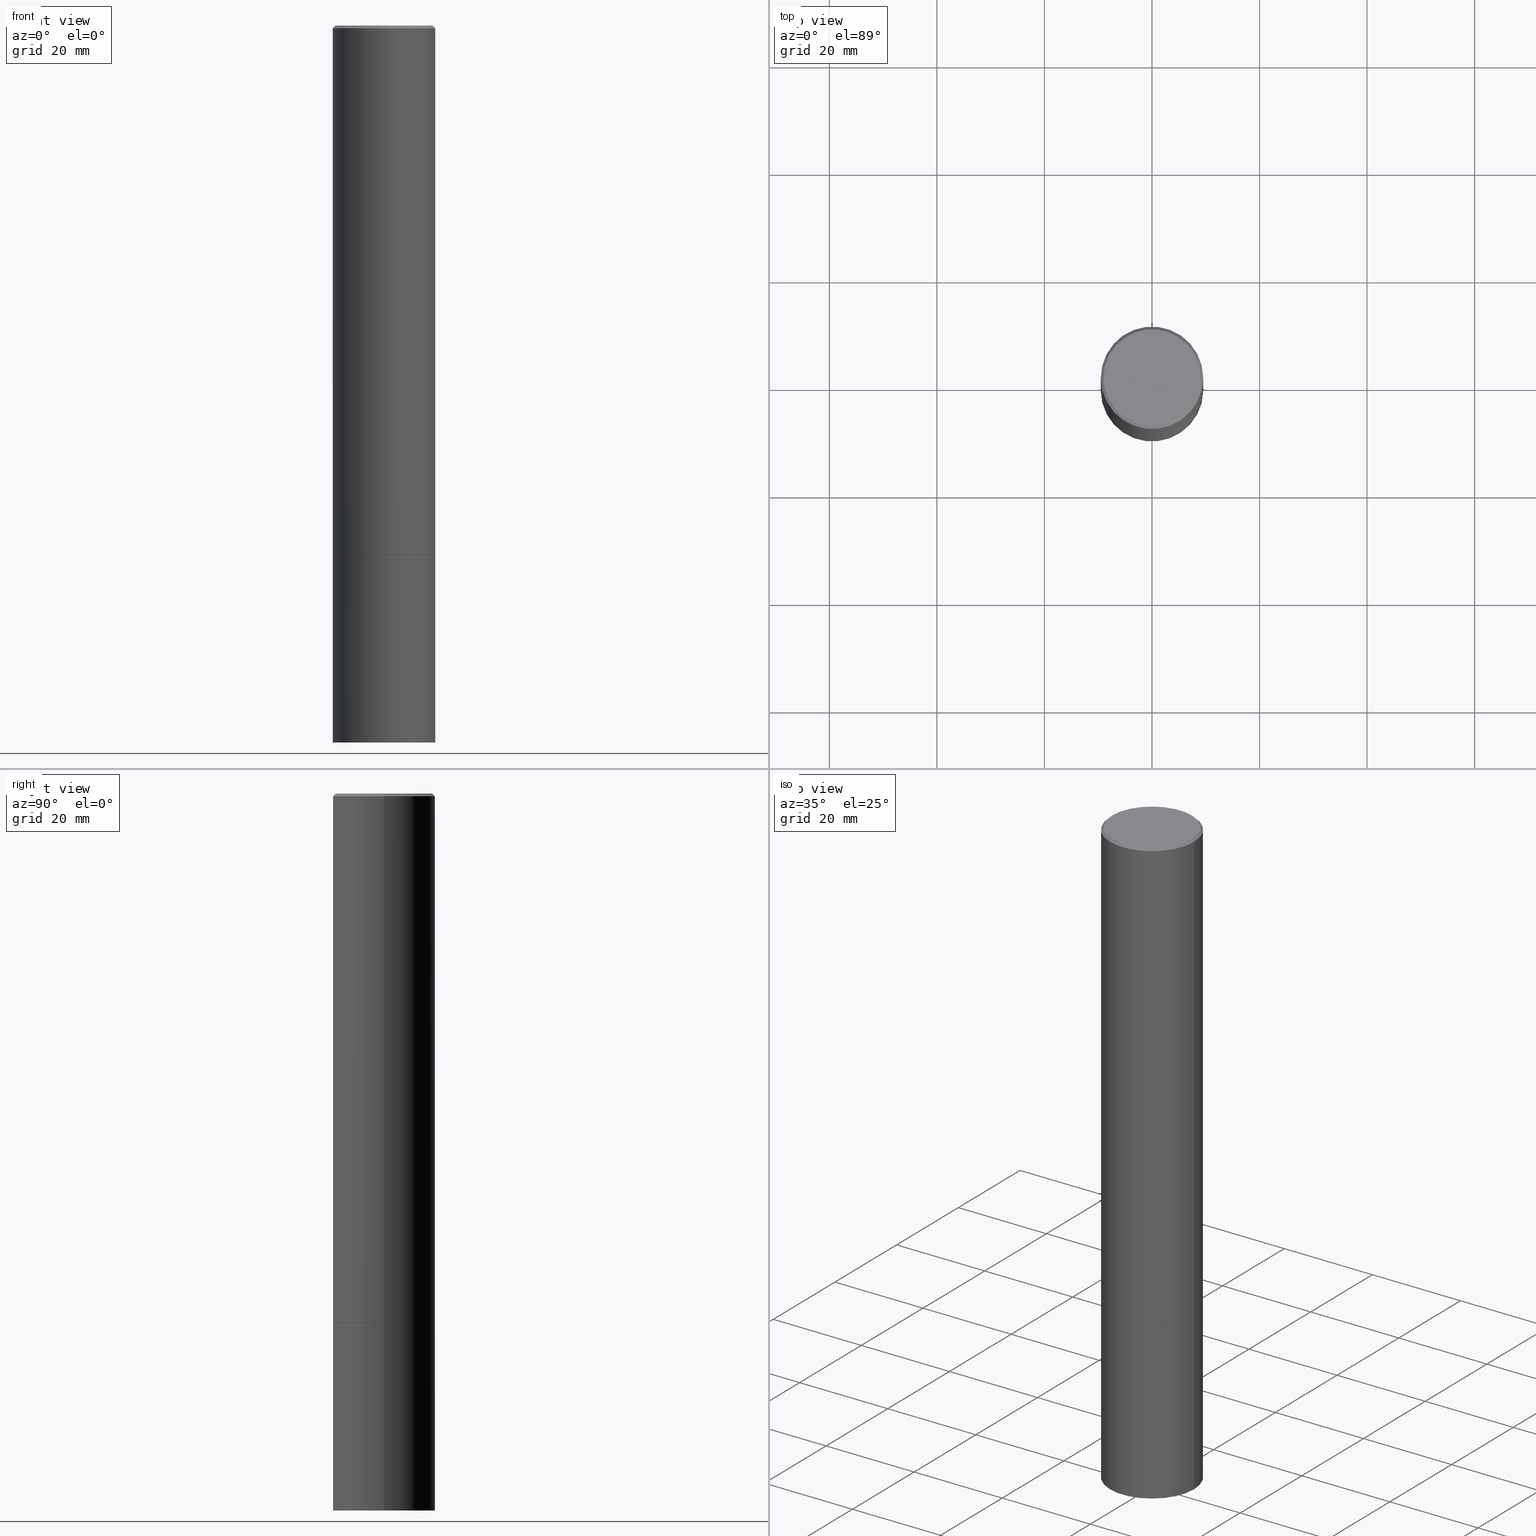
[diagram: canonical four-view strip — front | top / right | iso, engineering-drawing reading convention]
A machine part, canonical four-view strip (front | top / right | iso — engineering-drawing reading convention). The complete STEP part file that produces these views, byte-faithful:
ISO-10303-21;
HEADER;
FILE_DESCRIPTION (( 'STEP AP203' ),
    '1' );
FILE_NAME ('32287.STEP',
    '2024-02-27T15:03:30',
    ( '' ),
    ( '' ),
    'SwSTEP 2.0',
    'SolidWorks 2023',
    '' );
FILE_SCHEMA (( 'CONFIG_CONTROL_DESIGN' ));
ENDSEC;

DATA;
#1 = ORIENTED_EDGE ( 'NONE', *, *, #98, .F. ) ;
#2 = MANIFOLD_SOLID_BREP ( 'Body-Move/Copy2[2]', #49 ) ;
#3 = DATE_AND_TIME ( #285, #34 ) ;
#4 = ORIENTED_EDGE ( 'NONE', *, *, #312, .T. ) ;
#5 = CALENDAR_DATE ( 2024, 27, 2 ) ;
#6 = AXIS2_PLACEMENT_3D ( 'NONE', #17, #97, #272 ) ;
#7 = AXIS2_PLACEMENT_3D ( 'NONE', #300, #294, #157 ) ;
#8 = ORIENTED_EDGE ( 'NONE', *, *, #308, .T. ) ;
#9 = VERTEX_POINT ( 'NONE', #28 ) ;
#10 = CARTESIAN_POINT ( 'NONE',  ( 0.000000000000000000, 0.000000000000000000, 0.000000000000000000 ) ) ;
#11 = APPROVAL_STATUS ( 'not_yet_approved' ) ;
#12 = MANIFOLD_SOLID_BREP ( 'Body-Move/Copy2[1]', #160 ) ;
#13 = DIRECTION ( 'NONE',  ( -0.7071067811865469066, 2.468850131082250355E-15, -0.7071067811865481278 ) ) ;
#14 = LINE ( 'NONE', #93, #191 ) ;
#15 = PERSON_AND_ORGANIZATION_ROLE ( 'classification_officer' ) ;
#16 = DIRECTION ( 'NONE',  ( 1.000000000000000000, -6.982962677686265922E-15, 4.876176775795935793E-29 ) ) ;
#17 = CARTESIAN_POINT ( 'NONE',  ( 0.000000000000000000, 0.000000000000000000, 0.000000000000000000 ) ) ;
#18 = CC_DESIGN_APPROVAL ( #335, ( #357 ) ) ;
#19 = DIRECTION ( 'NONE',  ( -2.445468806185136597E-29, 3.491481338843145583E-15, 1.000000000000000000 ) ) ;
#20 = LINE ( 'NONE', #360, #254 ) ;
#21 = CARTESIAN_POINT ( 'NONE',  ( -0.3739999999999999991, -1.086676190192619278E-14, -3.875000000000000444 ) ) ;
#22 = FACE_OUTER_BOUND ( 'NONE', #144, .T. ) ;
#23 = CIRCLE ( 'NONE', #138, 0.3749999999999996669 ) ;
#24 = AXIS2_PLACEMENT_3D ( 'NONE', #26, #130, #77 ) ;
#25 = EDGE_CURVE ( 'NONE', #320, #342, #255, .T. ) ;
#26 = CARTESIAN_POINT ( 'NONE',  ( -2.087702828670439639E-46, 2.980686340760894400E-32, 8.537024980200822558E-18 ) ) ;
#27 = EDGE_CURVE ( 'NONE', #196, #261, #253, .T. ) ;
#28 = CARTESIAN_POINT ( 'NONE',  ( 0.3750000000000000555, -1.614810119214954068E-14, -3.875000000000000000 ) ) ;
#29 = AXIS2_PLACEMENT_3D ( 'NONE', #91, #207, #240 ) ;
#30 = ORIENTED_EDGE ( 'NONE', *, *, #183, .T. ) ;
#31 = EDGE_LOOP ( 'NONE', ( #109, #338, #197, #170 ) ) ;
#32 = ORIENTED_EDGE ( 'NONE', *, *, #203, .F. ) ;
#33 = VECTOR ( 'NONE', #151, 39.37007874015748143 ) ;
#34 = LOCAL_TIME ( 10, 3, 30.00000000000000000, #103 ) ;
#35 = EDGE_CURVE ( 'NONE', #345, #9, #361, .T. ) ;
#36 = CC_DESIGN_APPROVAL ( #246, ( #59 ) ) ;
#37 = ADVANCED_FACE ( 'NONE', ( #350 ), #211, .F. ) ;
#38 = ORIENTED_EDGE ( 'NONE', *, *, #299, .F. ) ;
#39 = DIRECTION ( 'NONE',  ( -2.445468806185136877E-29, 3.491481338843145188E-15, 1.000000000000000000 ) ) ;
#40 = DATE_TIME_ROLE ( 'creation_date' ) ;
#41 = CARTESIAN_POINT ( 'NONE',  ( 9.476191623967405434E-29, -1.352949018801719066E-14, -3.875000000000000444 ) ) ;
#42 = APPROVAL_DATE_TIME ( #208, #335 ) ;
#43 = APPROVAL_PERSON_ORGANIZATION ( #319, #128, #341 ) ;
#44 = DIRECTION ( 'NONE',  ( 1.000000000000000000, -6.982962677686265922E-15, 4.876176775795935793E-29 ) ) ;
#45 = COORDINATED_UNIVERSAL_TIME_OFFSET ( 5, 0, .BEHIND. ) ;
#46 = CARTESIAN_POINT ( 'NONE',  ( -0.3549999999999996492, 2.513866563967053097E-15, 8.537024980183364388E-18 ) ) ;
#47 = DIRECTION ( 'NONE',  ( 1.000000000000000000, -6.982962677686265133E-15, 0.000000000000000000 ) ) ;
#48 = APPROVAL_STATUS ( 'not_yet_approved' ) ;
#49 = CLOSED_SHELL ( 'NONE', ( #366, #167, #343, #353, #171, #104, #37, #222 ) ) ;
#50 = FACE_OUTER_BOUND ( 'NONE', #339, .T. ) ;
#51 = AXIS2_PLACEMENT_3D ( 'NONE', #251, #52, #332 ) ;
#52 = DIRECTION ( 'NONE',  ( 2.438088387897960049E-29, -3.491481338843145188E-15, -1.000000000000000000 ) ) ;
#53 = CARTESIAN_POINT ( 'NONE',  ( 0.000000000000000000, 0.000000000000000000, 0.000000000000000000 ) ) ;
#54 = EDGE_CURVE ( 'NONE', #199, #320, #117, .T. ) ;
#55 = CARTESIAN_POINT ( 'NONE',  ( 9.473746155161219831E-29, -1.352599870667834608E-14, -3.874000000000000110 ) ) ;
#56 = VECTOR ( 'NONE', #39, 39.37007874015748143 ) ;
#57 = EDGE_LOOP ( 'NONE', ( #283, #263, #115, #173 ) ) ;
#58 = ORIENTED_EDGE ( 'NONE', *, *, #231, .F. ) ;
#59 = PRODUCT_DEFINITION ( 'UNKNOWN', '', #357, #142 ) ;
#60 = APPLICATION_CONTEXT ( 'configuration controlled 3d designs of mechanical parts and assemblies' ) ;
#61 = AXIS2_PLACEMENT_3D ( 'NONE', #346, #125, #47 ) ;
#62 = EDGE_LOOP ( 'NONE', ( #284, #135 ) ) ;
#63 = VERTEX_POINT ( 'NONE', #73 ) ;
#64 = EDGE_LOOP ( 'NONE', ( #228, #317, #141, #309 ) ) ;
#65 = CYLINDRICAL_SURFACE ( 'NONE', #260, 0.3749999999999998335 ) ;
#66 = UNCERTAINTY_MEASURE_WITH_UNIT (LENGTH_MEASURE( 1.000000000000000082E-05 ), #150, 'distance_accuracy_value', 'NONE');
#67 = PERSON_AND_ORGANIZATION ( #306, #194 ) ;
#68 = EDGE_CURVE ( 'NONE', #84, #224, #14, .T. ) ;
#69 = CARTESIAN_POINT ( 'NONE',  ( -0.3750000000000000555, -1.326534834937147625E-14, -5.250000000000000000 ) ) ;
#70 = CARTESIAN_POINT ( 'NONE',  ( 1.283871123247196713E-28, -1.833027702892651322E-14, -5.250000000000000000 ) ) ;
#71 = APPLICATION_PROTOCOL_DEFINITION ( 'international standard', 'config_control_design', 1994, #112 ) ;
#72 = AXIS2_PLACEMENT_3D ( 'NONE', #53, #189, #280 ) ;
#73 = CARTESIAN_POINT ( 'NONE',  ( 0.3749999999999996669, -2.642516375941185662E-15, -0.02000000000000008715 ) ) ;
#74 =( NAMED_UNIT ( * ) SI_UNIT ( $, .STERADIAN. ) SOLID_ANGLE_UNIT ( ) );
#75 = FACE_OUTER_BOUND ( 'NONE', #64, .T. ) ;
#76 = CYLINDRICAL_SURFACE ( 'NONE', #72, 0.3750000000000000555 ) ;
#77 = DIRECTION ( 'NONE',  ( 1.000000000000000000, -6.982962677686265922E-15, 4.876231632511992667E-29 ) ) ;
#78 = CIRCLE ( 'NONE', #106, 0.3739999999999999991 ) ;
#79 = FACE_OUTER_BOUND ( 'NONE', #57, .T. ) ;
#80 = LINE ( 'NONE', #127, #81 ) ;
#81 = VECTOR ( 'NONE', #276, 39.37007874015748143 ) ;
#82 = PRODUCT_DEFINITION_SHAPE ( 'NONE', 'NONE',  #59 ) ;
#83 = EDGE_LOOP ( 'NONE', ( #314, #139 ) ) ;
#84 = VERTEX_POINT ( 'NONE', #46 ) ;
#85 = ORIENTED_EDGE ( 'NONE', *, *, #364, .F. ) ;
#86 = EDGE_LOOP ( 'NONE', ( #114, #315 ) ) ;
#87 = VERTEX_POINT ( 'NONE', #302 ) ;
#88 = CARTESIAN_POINT ( 'NONE',  ( 0.3739999999999999991, -1.614111822947185466E-14, -3.875000000000000444 ) ) ;
#89 = AXIS2_PLACEMENT_3D ( 'NONE', #158, #95, #214 ) ;
#90 = AXIS2_PLACEMENT_3D ( 'NONE', #101, #216, #132 ) ;
#91 = CARTESIAN_POINT ( 'NONE',  ( 9.476191623967405434E-29, -1.352949018801719066E-14, -3.875000000000000444 ) ) ;
#92 = CC_DESIGN_PERSON_AND_ORGANIZATION_ASSIGNMENT ( #153, #267, ( #357 ) ) ;
#93 = CARTESIAN_POINT ( 'NONE',  ( -0.3749999999999996669, 2.548781377355484352E-15, -0.02000000000000008715 ) ) ;
#94 = CARTESIAN_POINT ( 'NONE',  ( 9.476191623967405434E-29, -1.352949018801719066E-14, -3.875000000000000444 ) ) ;
#95 = DIRECTION ( 'NONE',  ( -2.445468806185136597E-29, 3.491481338843145583E-15, 1.000000000000000000 ) ) ;
#96 = CIRCLE ( 'NONE', #145, 0.3749999999999996669 ) ;
#97 = DIRECTION ( 'NONE',  ( -2.445468806185136597E-29, 3.491481338843145583E-15, 1.000000000000000000 ) ) ;
#98 = EDGE_CURVE ( 'NONE', #224, #63, #23, .T. ) ;
#99 = APPROVAL_DATE_TIME ( #146, #128 ) ;
#100 =( LENGTH_UNIT ( ) NAMED_UNIT ( * ) SI_UNIT ( $, .METRE. ) );
#101 = CARTESIAN_POINT ( 'NONE',  ( 4.890937612370294178E-31, -6.982962677686321191E-17, -0.02000000000000008715 ) ) ;
#102 = DIRECTION ( 'NONE',  ( -1.000000000000000000, 6.982962677686266711E-15, 0.000000000000000000 ) ) ;
#103 = COORDINATED_UNIVERSAL_TIME_OFFSET ( 5, 0, .BEHIND. ) ;
#104 = ADVANCED_FACE ( 'NONE', ( #122 ), #218, .T. ) ;
#105 = PLANE ( 'NONE',  #205 ) ;
#106 = AXIS2_PLACEMENT_3D ( 'NONE', #136, #277, #249 ) ;
#107 = CARTESIAN_POINT ( 'NONE',  ( 0.3749999999999996669, -2.642516375941185662E-15, -0.02000000000000008715 ) ) ;
#108 = CC_DESIGN_DATE_AND_TIME_ASSIGNMENT ( #292, #40, ( #59 ) ) ;
#109 = ORIENTED_EDGE ( 'NONE', *, *, #54, .T. ) ;
#110 = ORIENTED_EDGE ( 'NONE', *, *, #131, .T. ) ;
#111 = EDGE_LOOP ( 'NONE', ( #148, #365, #110, #58 ) ) ;
#112 = APPLICATION_CONTEXT ( 'configuration controlled 3d designs of mechanical parts and assemblies' ) ;
#113 = AXIS2_PLACEMENT_3D ( 'NONE', #184, #204, #209 ) ;
#114 = ORIENTED_EDGE ( 'NONE', *, *, #168, .T. ) ;
#115 = ORIENTED_EDGE ( 'NONE', *, *, #180, .T. ) ;
#116 = CYLINDRICAL_SURFACE ( 'NONE', #6, 0.3749999999999998335 ) ;
#117 = CIRCLE ( 'NONE', #192, 0.3739999999999999991 ) ;
#118 = CONICAL_SURFACE ( 'NONE', #90, 0.3749999999999996669, 0.7853981633974473908 ) ;
#119 = APPLICATION_PROTOCOL_DEFINITION ( 'international standard', 'config_control_design', 1994, #60 ) ;
#120 = CARTESIAN_POINT ( 'NONE',  ( 1.283871123247196713E-28, -1.833027702892651322E-14, -5.250000000000000000 ) ) ;
#121 = PERSON_AND_ORGANIZATION_ROLE ( 'creator' ) ;
#122 = FACE_OUTER_BOUND ( 'NONE', #111, .T. ) ;
#123 = APPROVAL_ROLE ( '' ) ;
#124 = EDGE_CURVE ( 'NONE', #230, #342, #227, .T. ) ;
#125 = DIRECTION ( 'NONE',  ( -2.445468806185136597E-29, 3.491481338843145583E-15, 1.000000000000000000 ) ) ;
#126 = APPROVAL_PERSON_ORGANIZATION ( #303, #246, #123 ) ;
#127 = CARTESIAN_POINT ( 'NONE',  ( -0.3749999999999998335, 2.664535259100374514E-15, -1.844600658845588757E-29 ) ) ;
#128 = APPROVAL ( #226, 'UNSPECIFIED' ) ;
#129 = COORDINATED_UNIVERSAL_TIME_OFFSET ( 5, 0, .BEHIND. ) ;
#130 = DIRECTION ( 'NONE',  ( -2.445468806185136597E-29, 3.491481338843145583E-15, 1.000000000000000000 ) ) ;
#131 = EDGE_CURVE ( 'NONE', #199, #230, #270, .T. ) ;
#132 = DIRECTION ( 'NONE',  ( -1.000000000000000000, 6.982962677686266711E-15, 0.000000000000000000 ) ) ;
#133 = AXIS2_PLACEMENT_3D ( 'NONE', #120, #182, #326 ) ;
#134 = LINE ( 'NONE', #359, #147 ) ;
#135 = ORIENTED_EDGE ( 'NONE', *, *, #364, .T. ) ;
#136 = CARTESIAN_POINT ( 'NONE',  ( 9.476191623967405434E-29, -1.352949018801719066E-14, -3.875000000000000444 ) ) ;
#137 = ADVANCED_FACE ( 'NONE', ( #75 ), #352, .T. ) ;
#138 = AXIS2_PLACEMENT_3D ( 'NONE', #156, #233, #238 ) ;
#139 = ORIENTED_EDGE ( 'NONE', *, *, #301, .F. ) ;
#140 = AXIS2_PLACEMENT_3D ( 'NONE', #94, #274, #159 ) ;
#141 = ORIENTED_EDGE ( 'NONE', *, *, #168, .F. ) ;
#142 = DESIGN_CONTEXT ( 'detailed design', #112, 'design' ) ;
#143 = ORIENTED_EDGE ( 'NONE', *, *, #98, .T. ) ;
#144 = EDGE_LOOP ( 'NONE', ( #85, #8, #30, #256 ) ) ;
#145 = AXIS2_PLACEMENT_3D ( 'NONE', #293, #235, #348 ) ;
#146 = DATE_AND_TIME ( #5, #250 ) ;
#147 = VECTOR ( 'NONE', #188, 39.37007874015748143 ) ;
#148 = ORIENTED_EDGE ( 'NONE', *, *, #25, .F. ) ;
#149 = DIRECTION ( 'NONE',  ( -2.445468806185136597E-29, 3.491481338843145583E-15, 1.000000000000000000 ) ) ;
#150 =( CONVERSION_BASED_UNIT ( 'INCH', #210 ) LENGTH_UNIT ( ) NAMED_UNIT ( #193 ) );
#151 = DIRECTION ( 'NONE',  ( 0.7071067811864026886, -2.468850131080739687E-15, 0.7071067811866923458 ) ) ;
#152 = LOCAL_TIME ( 10, 3, 30.00000000000000000, #45 ) ;
#153 = PERSON_AND_ORGANIZATION ( #306, #194 ) ;
#154 = FACE_OUTER_BOUND ( 'NONE', #62, .T. ) ;
#155 = SECURITY_CLASSIFICATION_LEVEL ( 'unclassified' ) ;
#156 = CARTESIAN_POINT ( 'NONE',  ( 4.890937612370294178E-31, -6.982962677686321191E-17, -0.02000000000000008715 ) ) ;
#157 = DIRECTION ( 'NONE',  ( 1.000000000000000000, 0.000000000000000000, 0.000000000000000000 ) ) ;
#158 = CARTESIAN_POINT ( 'NONE',  ( 9.476191623967404313E-29, -1.352949018801718908E-14, -3.875000000000000000 ) ) ;
#159 = DIRECTION ( 'NONE',  ( 1.000000000000000000, -6.982962677686265133E-15, 0.000000000000000000 ) ) ;
#160 = CLOSED_SHELL ( 'NONE', ( #137, #327, #232, #271 ) ) ;
#161 = CARTESIAN_POINT ( 'NONE',  ( 0.3750000000000000555, -2.094888803305886324E-14, -5.250000000000000000 ) ) ;
#162 = PLANE ( 'NONE',  #51 ) ;
#163 = CC_DESIGN_PERSON_AND_ORGANIZATION_ASSIGNMENT ( #181, #297, ( #357 ) ) ;
#164 = CARTESIAN_POINT ( 'NONE',  ( 2.618611004132478601E-15, 0.3749999999999817368, -5.250000000000000888 ) ) ;
#165 = DIRECTION ( 'NONE',  ( 1.000000000000000000, -6.982962677686269077E-15, 0.000000000000000000 ) ) ;
#166 = LOCAL_TIME ( 10, 3, 30.00000000000000000, #129 ) ;
#167 = ADVANCED_FACE ( 'NONE', ( #354 ), #116, .T. ) ;
#168 = EDGE_CURVE ( 'NONE', #9, #345, #278, .T. ) ;
#169 = ORIENTED_EDGE ( 'NONE', *, *, #308, .F. ) ;
#170 = ORIENTED_EDGE ( 'NONE', *, *, #131, .F. ) ;
#171 = ADVANCED_FACE ( 'NONE', ( #324 ), #65, .T. ) ;
#172 = CARTESIAN_POINT ( 'NONE',  ( -0.3739999999999999991, -1.087206035627441518E-14, -3.875000000000000444 ) ) ;
#173 = ORIENTED_EDGE ( 'NONE', *, *, #35, .F. ) ;
#174 = ORIENTED_EDGE ( 'NONE', *, *, #312, .F. ) ;
#175 = CARTESIAN_POINT ( 'NONE',  ( 0.000000000000000000, 0.000000000000000000, 0.000000000000000000 ) ) ;
#176 = CALENDAR_DATE ( 2024, 27, 2 ) ;
#177 = CARTESIAN_POINT ( 'NONE',  ( 0.3739999999999999991, -1.614111822947185466E-14, -3.875000000000000444 ) ) ;
#178 = PERSON_AND_ORGANIZATION_ROLE ( 'design_owner' ) ;
#179 = DIRECTION ( 'NONE',  ( -2.445468806185136597E-29, 3.491481338843145583E-15, 1.000000000000000000 ) ) ;
#180 = EDGE_CURVE ( 'NONE', #261, #9, #325, .T. ) ;
#181 = PERSON_AND_ORGANIZATION ( #306, #194 ) ;
#182 = DIRECTION ( 'NONE',  ( -2.445468806185136597E-29, 3.491481338843145583E-15, 1.000000000000000000 ) ) ;
#183 = EDGE_CURVE ( 'NONE', #63, #224, #96, .T. ) ;
#184 = CARTESIAN_POINT ( 'NONE',  ( 9.476191623967404313E-29, -1.352949018801718908E-14, -3.875000000000000000 ) ) ;
#185 = PERSON_AND_ORGANIZATION ( #306, #194 ) ;
#186 = DIRECTION ( 'NONE',  ( -1.000000000000000000, 6.982962677686265922E-15, -4.876176775795935793E-29 ) ) ;
#187 = AXIS2_PLACEMENT_3D ( 'NONE', #264, #149, #322 ) ;
#188 = DIRECTION ( 'NONE',  ( -2.445468806185136877E-29, 3.491481338843145188E-15, 1.000000000000000000 ) ) ;
#189 = DIRECTION ( 'NONE',  ( -2.445468806185136597E-29, 3.491481338843145583E-15, 1.000000000000000000 ) ) ;
#190 = CARTESIAN_POINT ( 'NONE',  ( 0.3749999999999999445, -1.614460971081069609E-14, -3.874000000000000110 ) ) ;
#191 = VECTOR ( 'NONE', #13, 39.37007874015748143 ) ;
#192 = AXIS2_PLACEMENT_3D ( 'NONE', #41, #329, #268 ) ;
#193 = DIMENSIONAL_EXPONENTS ( 1.000000000000000000, 0.000000000000000000, 0.000000000000000000, 0.000000000000000000, 0.000000000000000000, 0.000000000000000000, 0.000000000000000000 ) ;
#194 = ORGANIZATION ( 'UNSPECIFIED', 'UNSPECIFIED', '' ) ;
#195 = CC_DESIGN_PERSON_AND_ORGANIZATION_ASSIGNMENT ( #185, #178, ( #344 ) ) ;
#196 = VERTEX_POINT ( 'NONE', #69 ) ;
#197 = ORIENTED_EDGE ( 'NONE', *, *, #124, .F. ) ;
#198 = AXIS2_PLACEMENT_3D ( 'NONE', #10, #243, #16 ) ;
#199 = VERTEX_POINT ( 'NONE', #177 ) ;
#200 = AXIS2_PLACEMENT_3D ( 'NONE', #55, #219, #165 ) ;
#201 = ORIENTED_EDGE ( 'NONE', *, *, #124, .T. ) ;
#202 = ORIENTED_EDGE ( 'NONE', *, *, #299, .T. ) ;
#203 = EDGE_CURVE ( 'NONE', #261, #196, #355, .T. ) ;
#204 = DIRECTION ( 'NONE',  ( -2.445468806185136597E-29, 3.491481338843145583E-15, 1.000000000000000000 ) ) ;
#205 = AXIS2_PLACEMENT_3D ( 'NONE', #362, #304, #186 ) ;
#206 = DATE_AND_TIME ( #247, #166 ) ;
#207 = DIRECTION ( 'NONE',  ( -2.438088387897960049E-29, 3.491481338843145188E-15, 1.000000000000000000 ) ) ;
#208 = DATE_AND_TIME ( #349, #152 ) ;
#209 = DIRECTION ( 'NONE',  ( 1.000000000000000000, -6.982962677686266711E-15, 0.000000000000000000 ) ) ;
#210 = LENGTH_MEASURE_WITH_UNIT ( LENGTH_MEASURE( 0.02539999999999999897 ), #100 );
#211 = PLANE ( 'NONE',  #29 ) ;
#212 = CC_DESIGN_PERSON_AND_ORGANIZATION_ASSIGNMENT ( #67, #121, ( #59 ) ) ;
#213 = SECURITY_CLASSIFICATION ( '', '', #155 ) ;
#214 = DIRECTION ( 'NONE',  ( 1.000000000000000000, -6.982962677686266711E-15, 0.000000000000000000 ) ) ;
#215 =( NAMED_UNIT ( * ) PLANE_ANGLE_UNIT ( ) SI_UNIT ( $, .RADIAN. ) );
#216 = DIRECTION ( 'NONE',  ( 2.445468806185136597E-29, -3.491481338843145583E-15, -1.000000000000000000 ) ) ;
#217 = DIRECTION ( 'NONE',  ( -1.000000000000000000, 6.982962677686265922E-15, -4.876176775795935793E-29 ) ) ;
#218 = CONICAL_SURFACE ( 'NONE', #61, 0.3739999999999999991, 0.7853981633972434429 ) ;
#219 = DIRECTION ( 'NONE',  ( -2.445468806185136597E-29, 3.491481338843145583E-15, 1.000000000000000000 ) ) ;
#220 = DIRECTION ( 'NONE',  ( 0.7071067811865469066, -7.319954787623254468E-15, -0.7071067811865481278 ) ) ;
#221 = ORIENTED_EDGE ( 'NONE', *, *, #27, .F. ) ;
#222 = ADVANCED_FACE ( 'NONE', ( #154 ), #105, .F. ) ;
#223 = CC_DESIGN_SECURITY_CLASSIFICATION ( #213, ( #357 ) ) ;
#224 = VERTEX_POINT ( 'NONE', #311 ) ;
#225 = EDGE_LOOP ( 'NONE', ( #32, #221 ) ) ;
#226 = APPROVAL_STATUS ( 'not_yet_approved' ) ;
#227 = CIRCLE ( 'NONE', #187, 0.3749999999999999445 ) ;
#228 = ORIENTED_EDGE ( 'NONE', *, *, #203, .T. ) ;
#229 = CIRCLE ( 'NONE', #262, 0.3549999999999996492 ) ;
#230 = VERTEX_POINT ( 'NONE', #190 ) ;
#231 = EDGE_CURVE ( 'NONE', #342, #230, #347, .T. ) ;
#232 = ADVANCED_FACE ( 'NONE', ( #307 ), #162, .F. ) ;
#233 = DIRECTION ( 'NONE',  ( -2.445468806185136597E-29, 3.491481338843145583E-15, 1.000000000000000000 ) ) ;
#234 = CC_DESIGN_DATE_AND_TIME_ASSIGNMENT ( #3, #257, ( #213 ) ) ;
#235 = DIRECTION ( 'NONE',  ( -2.445468806185136597E-29, 3.491481338843145583E-15, 1.000000000000000000 ) ) ;
#236 = VECTOR ( 'NONE', #298, 39.37007874015748143 ) ;
#237 = MECHANICAL_CONTEXT ( 'NONE', #60, 'mechanical' ) ;
#238 = DIRECTION ( 'NONE',  ( 1.000000000000000000, -6.982962677686266711E-15, 0.000000000000000000 ) ) ;
#239 = COORDINATED_UNIVERSAL_TIME_OFFSET ( 5, 0, .BEHIND. ) ;
#240 = DIRECTION ( 'NONE',  ( 1.000000000000000000, -6.982962677686265922E-15, 4.876176775795935793E-29 ) ) ;
#241 = SHAPE_DEFINITION_REPRESENTATION ( #82, #288 ) ;
#242 = CARTESIAN_POINT ( 'NONE',  ( -2.087702828670439639E-46, 2.980686340760894400E-32, 8.537024980200822558E-18 ) ) ;
#243 = DIRECTION ( 'NONE',  ( -2.445468806185136597E-29, 3.491481338843145583E-15, 1.000000000000000000 ) ) ;
#244 = AXIS2_PLACEMENT_3D ( 'NONE', #70, #179, #295 ) ;
#245 = DIRECTION ( 'NONE',  ( 2.438088387897960049E-29, -3.491481338843145188E-15, -1.000000000000000000 ) ) ;
#246 = APPROVAL ( #48, 'UNSPECIFIED' ) ;
#247 = CALENDAR_DATE ( 2024, 27, 2 ) ;
#248 = DIRECTION ( 'NONE',  ( 2.445468806185136597E-29, -3.491481338843145583E-15, -1.000000000000000000 ) ) ;
#249 = DIRECTION ( 'NONE',  ( 1.000000000000000000, -6.982962677686265133E-15, 0.000000000000000000 ) ) ;
#250 = LOCAL_TIME ( 10, 3, 30.00000000000000000, #259 ) ;
#251 = CARTESIAN_POINT ( 'NONE',  ( 2.618611004132444680E-15, 0.3749999999999865108, -3.875000000000001332 ) ) ;
#252 = LINE ( 'NONE', #107, #279 ) ;
#253 = CIRCLE ( 'NONE', #133, 0.3750000000000000555 ) ;
#254 = VECTOR ( 'NONE', #336, 39.37007874015748143 ) ;
#255 = LINE ( 'NONE', #172, #236 ) ;
#256 = ORIENTED_EDGE ( 'NONE', *, *, #68, .F. ) ;
#257 = DATE_TIME_ROLE ( 'classification_date' ) ;
#258 = EDGE_LOOP ( 'NONE', ( #201, #4, #340, #38 ) ) ;
#259 = COORDINATED_UNIVERSAL_TIME_OFFSET ( 5, 0, .BEHIND. ) ;
#260 = AXIS2_PLACEMENT_3D ( 'NONE', #175, #266, #44 ) ;
#261 = VERTEX_POINT ( 'NONE', #161 ) ;
#262 = AXIS2_PLACEMENT_3D ( 'NONE', #242, #19, #328 ) ;
#263 = ORIENTED_EDGE ( 'NONE', *, *, #27, .T. ) ;
#264 = CARTESIAN_POINT ( 'NONE',  ( 9.473746155161219831E-29, -1.352599870667834608E-14, -3.874000000000000110 ) ) ;
#265 = PERSON_AND_ORGANIZATION ( #306, #194 ) ;
#266 = DIRECTION ( 'NONE',  ( -2.445468806185136597E-29, 3.491481338843145583E-15, 1.000000000000000000 ) ) ;
#267 = PERSON_AND_ORGANIZATION_ROLE ( 'creator' ) ;
#268 = DIRECTION ( 'NONE',  ( 1.000000000000000000, -6.982962677686265133E-15, 0.000000000000000000 ) ) ;
#269 = PERSON_AND_ORGANIZATION ( #306, #194 ) ;
#270 = LINE ( 'NONE', #88, #33 ) ;
#271 = ADVANCED_FACE ( 'NONE', ( #79 ), #76, .T. ) ;
#272 = DIRECTION ( 'NONE',  ( 1.000000000000000000, -6.982962677686265922E-15, 4.876176775795935793E-29 ) ) ;
#273 = AXIS2_PLACEMENT_3D ( 'NONE', #275, #248, #102 ) ;
#274 = DIRECTION ( 'NONE',  ( -2.445468806185136597E-29, 3.491481338843145583E-15, 1.000000000000000000 ) ) ;
#275 = CARTESIAN_POINT ( 'NONE',  ( 4.890937612370294178E-31, -6.982962677686321191E-17, -0.02000000000000008715 ) ) ;
#276 = DIRECTION ( 'NONE',  ( -2.445468806185136877E-29, 3.491481338843145188E-15, 1.000000000000000000 ) ) ;
#277 = DIRECTION ( 'NONE',  ( -2.445468806185136597E-29, 3.491481338843145583E-15, 1.000000000000000000 ) ) ;
#278 = CIRCLE ( 'NONE', #113, 0.3750000000000000555 ) ;
#279 = VECTOR ( 'NONE', #220, 39.37007874015748143 ) ;
#280 = DIRECTION ( 'NONE',  ( 1.000000000000000000, -6.982962677686265922E-15, 4.876176775795935793E-29 ) ) ;
#281 = ORIENTED_EDGE ( 'NONE', *, *, #286, .F. ) ;
#282 = AXIS2_PLACEMENT_3D ( 'NONE', #164, #245, #217 ) ;
#283 = ORIENTED_EDGE ( 'NONE', *, *, #363, .F. ) ;
#284 = ORIENTED_EDGE ( 'NONE', *, *, #286, .T. ) ;
#285 = CALENDAR_DATE ( 2024, 27, 2 ) ;
#286 = EDGE_CURVE ( 'NONE', #84, #87, #305, .T. ) ;
#287 = ORIENTED_EDGE ( 'NONE', *, *, #231, .T. ) ;
#288 = ADVANCED_BREP_SHAPE_REPRESENTATION ( '32287', ( #12, #2, #7 ), #289 ) ;
#289 =( GEOMETRIC_REPRESENTATION_CONTEXT ( 3 ) GLOBAL_UNCERTAINTY_ASSIGNED_CONTEXT ( ( #66 ) ) GLOBAL_UNIT_ASSIGNED_CONTEXT ( ( #150, #215, #74 ) ) REPRESENTATION_CONTEXT ( 'NONE', 'WORKASPACE' ) );
#290 = ORIENTED_EDGE ( 'NONE', *, *, #68, .T. ) ;
#291 = CARTESIAN_POINT ( 'NONE',  ( 0.3750000000000000555, -2.618611004132350016E-15, 1.828566290923476203E-29 ) ) ;
#292 = DATE_AND_TIME ( #176, #333 ) ;
#293 = CARTESIAN_POINT ( 'NONE',  ( 4.890937612370294178E-31, -6.982962677686321191E-17, -0.02000000000000008715 ) ) ;
#294 = DIRECTION ( 'NONE',  ( 0.000000000000000000, 0.000000000000000000, 1.000000000000000000 ) ) ;
#295 = DIRECTION ( 'NONE',  ( 1.000000000000000000, -6.982962677686261189E-15, 0.000000000000000000 ) ) ;
#296 = CONICAL_SURFACE ( 'NONE', #140, 0.3739999999999999991, 0.7853981633972434429 ) ;
#297 = PERSON_AND_ORGANIZATION_ROLE ( 'design_supplier' ) ;
#298 = DIRECTION ( 'NONE',  ( -0.7071067811864026886, 7.493145998869830357E-15, 0.7071067811866923458 ) ) ;
#299 = EDGE_CURVE ( 'NONE', #230, #63, #20, .T. ) ;
#300 = CARTESIAN_POINT ( 'NONE',  ( 0.000000000000000000, 0.000000000000000000, 0.000000000000000000 ) ) ;
#301 = EDGE_CURVE ( 'NONE', #320, #199, #78, .T. ) ;
#302 = CARTESIAN_POINT ( 'NONE',  ( 0.3549999999999996492, -2.538996582575038287E-15, 8.537024980218368550E-18 ) ) ;
#303 = PERSON_AND_ORGANIZATION ( #306, #194 ) ;
#304 = DIRECTION ( 'NONE',  ( 2.438088387897960049E-29, -3.491481338843145188E-15, -1.000000000000000000 ) ) ;
#305 = CIRCLE ( 'NONE', #24, 0.3549999999999996492 ) ;
#306 = PERSON ( 'UNSPECIFIED', 'UNSPECIFIED', 'UNSPECIFIED', ('UNSPECIFIED'), ('UNSPECIFIED'), ('UNSPECIFIED') ) ;
#307 = FACE_OUTER_BOUND ( 'NONE', #86, .T. ) ;
#308 = EDGE_CURVE ( 'NONE', #87, #63, #252, .T. ) ;
#309 = ORIENTED_EDGE ( 'NONE', *, *, #180, .F. ) ;
#310 = FACE_OUTER_BOUND ( 'NONE', #225, .T. ) ;
#311 = CARTESIAN_POINT ( 'NONE',  ( -0.3749999999999996669, 2.548781377355484352E-15, -0.02000000000000008715 ) ) ;
#312 = EDGE_CURVE ( 'NONE', #342, #224, #80, .T. ) ;
#313 = CC_DESIGN_PERSON_AND_ORGANIZATION_ASSIGNMENT ( #269, #15, ( #213 ) ) ;
#314 = ORIENTED_EDGE ( 'NONE', *, *, #54, .F. ) ;
#315 = ORIENTED_EDGE ( 'NONE', *, *, #35, .T. ) ;
#316 = CONICAL_SURFACE ( 'NONE', #273, 0.3749999999999996669, 0.7853981633974473908 ) ;
#317 = ORIENTED_EDGE ( 'NONE', *, *, #363, .T. ) ;
#318 = EDGE_LOOP ( 'NONE', ( #174, #287, #202, #1 ) ) ;
#319 = PERSON_AND_ORGANIZATION ( #306, #194 ) ;
#320 = VERTEX_POINT ( 'NONE', #21 ) ;
#321 = CC_DESIGN_APPROVAL ( #128, ( #213 ) ) ;
#322 = DIRECTION ( 'NONE',  ( 1.000000000000000000, -6.982962677686269077E-15, 0.000000000000000000 ) ) ;
#323 = APPROVAL_DATE_TIME ( #206, #246 ) ;
#324 = FACE_OUTER_BOUND ( 'NONE', #318, .T. ) ;
#325 = LINE ( 'NONE', #291, #56 ) ;
#326 = DIRECTION ( 'NONE',  ( 1.000000000000000000, -6.982962677686261189E-15, 0.000000000000000000 ) ) ;
#327 = ADVANCED_FACE ( 'NONE', ( #310 ), #334, .T. ) ;
#328 = DIRECTION ( 'NONE',  ( 1.000000000000000000, -6.982962677686265922E-15, 4.876231632511992667E-29 ) ) ;
#329 = DIRECTION ( 'NONE',  ( -2.445468806185136597E-29, 3.491481338843145583E-15, 1.000000000000000000 ) ) ;
#330 = FACE_OUTER_BOUND ( 'NONE', #31, .T. ) ;
#331 = CARTESIAN_POINT ( 'NONE',  ( -0.3750000000000000555, -1.326534834937147625E-14, -3.875000000000000000 ) ) ;
#332 = DIRECTION ( 'NONE',  ( -1.000000000000000000, 6.982962677686265922E-15, -4.876176775795935793E-29 ) ) ;
#333 = LOCAL_TIME ( 10, 3, 30.00000000000000000, #239 ) ;
#334 = PLANE ( 'NONE',  #282 ) ;
#335 = APPROVAL ( #11, 'UNSPECIFIED' ) ;
#336 = DIRECTION ( 'NONE',  ( -2.445468806185136877E-29, 3.491481338843145188E-15, 1.000000000000000000 ) ) ;
#337 = APPROVAL_PERSON_ORGANIZATION ( #265, #335, #351 ) ;
#338 = ORIENTED_EDGE ( 'NONE', *, *, #25, .T. ) ;
#339 = EDGE_LOOP ( 'NONE', ( #169, #281, #290, #143 ) ) ;
#340 = ORIENTED_EDGE ( 'NONE', *, *, #183, .F. ) ;
#341 = APPROVAL_ROLE ( '' ) ;
#342 = VERTEX_POINT ( 'NONE', #358 ) ;
#343 = ADVANCED_FACE ( 'NONE', ( #22 ), #118, .T. ) ;
#344 = PRODUCT ( '32287', '32287', '', ( #237 ) ) ;
#345 = VERTEX_POINT ( 'NONE', #331 ) ;
#346 = CARTESIAN_POINT ( 'NONE',  ( 9.476191623967405434E-29, -1.352949018801719066E-14, -3.875000000000000444 ) ) ;
#347 = CIRCLE ( 'NONE', #200, 0.3749999999999999445 ) ;
#348 = DIRECTION ( 'NONE',  ( 1.000000000000000000, -6.982962677686266711E-15, 0.000000000000000000 ) ) ;
#349 = CALENDAR_DATE ( 2024, 27, 2 ) ;
#350 = FACE_OUTER_BOUND ( 'NONE', #83, .T. ) ;
#351 = APPROVAL_ROLE ( '' ) ;
#352 = CYLINDRICAL_SURFACE ( 'NONE', #198, 0.3750000000000000555 ) ;
#353 = ADVANCED_FACE ( 'NONE', ( #50 ), #316, .T. ) ;
#354 = FACE_OUTER_BOUND ( 'NONE', #258, .T. ) ;
#355 = CIRCLE ( 'NONE', #244, 0.3750000000000000555 ) ;
#356 = PRODUCT_RELATED_PRODUCT_CATEGORY ( 'detail', '', ( #344 ) ) ;
#357 = PRODUCT_DEFINITION_FORMATION_WITH_SPECIFIED_SOURCE ( 'ANY', '', #344, .NOT_KNOWN. ) ;
#358 = CARTESIAN_POINT ( 'NONE',  ( -0.3749999999999999445, -4.133378907627225046E-15, -3.874000000000000110 ) ) ;
#359 = CARTESIAN_POINT ( 'NONE',  ( -0.3750000000000000555, 2.664535259100376091E-15, -1.844600658845589598E-29 ) ) ;
#360 = CARTESIAN_POINT ( 'NONE',  ( 0.3749999999999998335, -2.618611004132348439E-15, 1.828566290923475082E-29 ) ) ;
#361 = CIRCLE ( 'NONE', #89, 0.3750000000000000555 ) ;
#362 = CARTESIAN_POINT ( 'NONE',  ( 2.478951750578621842E-15, 0.3549999999999996492, -1.235207362799214833E-15 ) ) ;
#363 = EDGE_CURVE ( 'NONE', #196, #345, #134, .T. ) ;
#364 = EDGE_CURVE ( 'NONE', #87, #84, #229, .T. ) ;
#365 = ORIENTED_EDGE ( 'NONE', *, *, #301, .T. ) ;
#366 = ADVANCED_FACE ( 'NONE', ( #330 ), #296, .T. ) ;
ENDSEC;
END-ISO-10303-21;
